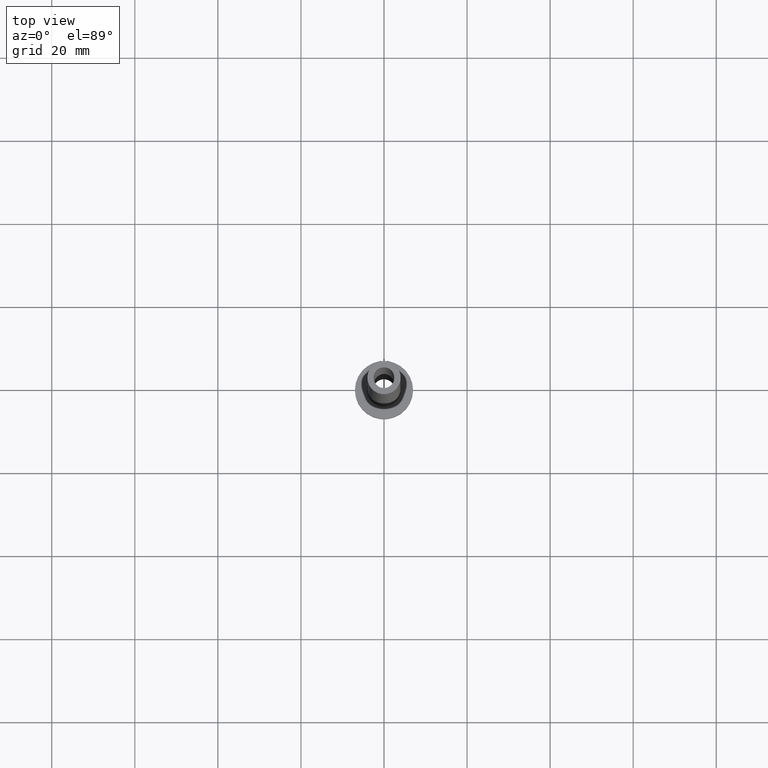
[diagram: clean part render]
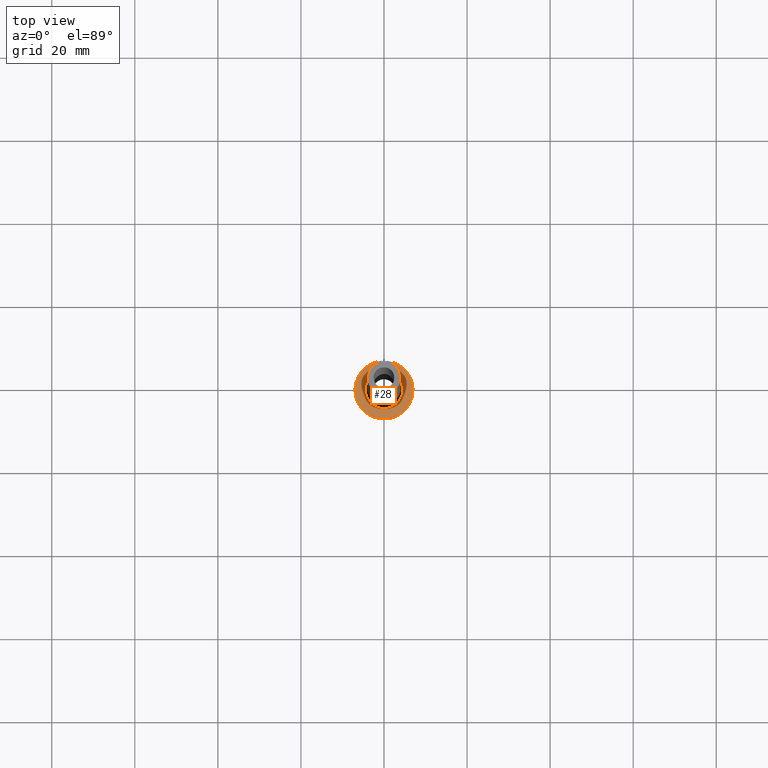
[diagram: same view with one face highlighted and labeled with its STEP entity id]
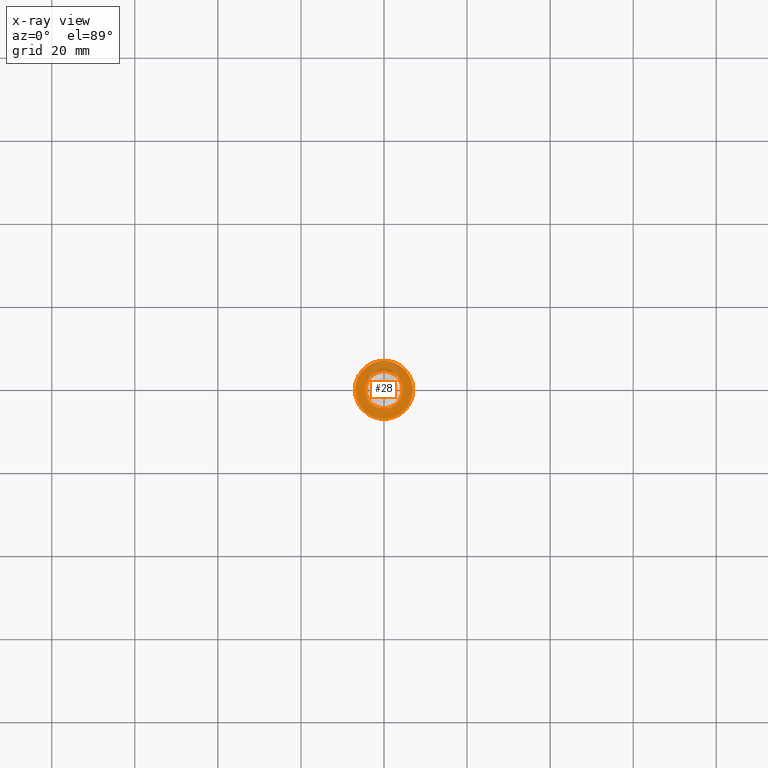
[diagram: x-ray of the same camera — body ghosted, the highlighted face saturated]
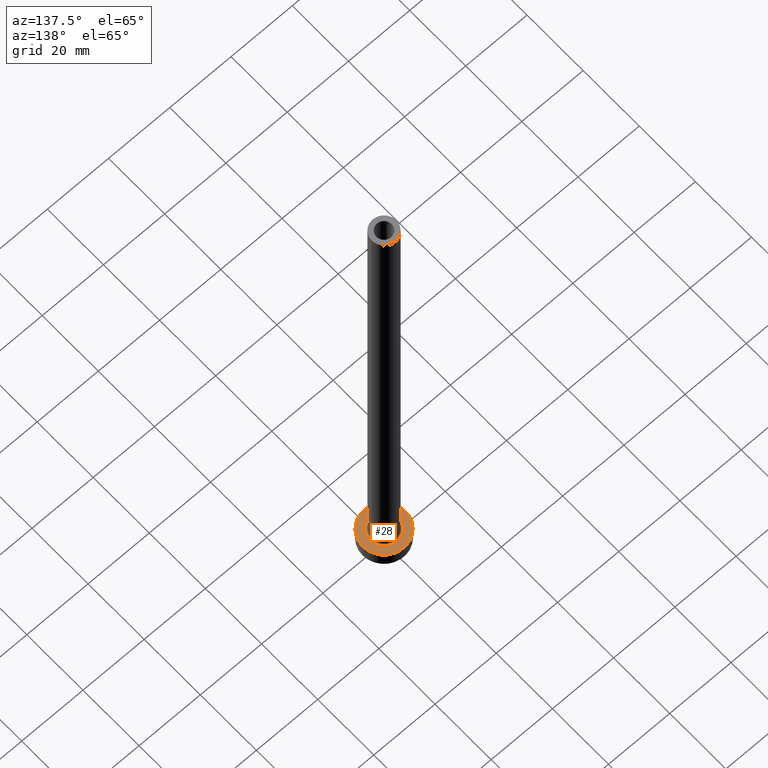
[diagram: same view with one face highlighted and labeled with its STEP entity id]
A machine part, top view. The second image highlights one B-rep face of the part: STEP entity #28.
The next image is the same camera in x-ray: the body ghosted, the highlighted face saturated — about 20% of this face is hidden behind the body in this view.
A second angle (auxiliary view) of the same face is appended — the face is thin or edge-on in the first view.
In plain terms, the highlighted planar face has unit normal (0, 0, 1).
Its self-contained STEP definition (entity closure, byte-faithful):
#9 = CIRCLE ( 'NONE', #252, 4.500000000000000888 ) ;
#28 = ADVANCED_FACE ( 'NONE', ( #218, #256 ), #220, .T. ) ;
#29 = CARTESIAN_POINT ( 'NONE',  ( 0.000000000000000000, 0.000000000000000000, 5.000000000000000000 ) ) ;
#47 = ORIENTED_EDGE ( 'NONE', *, *, #328, .T. ) ;
#68 = DIRECTION ( 'NONE',  ( 1.000000000000000000, 0.000000000000000000, 0.000000000000000000 ) ) ;
#81 = VERTEX_POINT ( 'NONE', #237 ) ;
#100 = CIRCLE ( 'NONE', #323, 7.000000000000000000 ) ;
#103 = CARTESIAN_POINT ( 'NONE',  ( 0.000000000000000000, 0.000000000000000000, 5.000000000000000000 ) ) ;
#104 = DIRECTION ( 'NONE',  ( 1.000000000000000000, 0.000000000000000000, 0.000000000000000000 ) ) ;
#117 = VERTEX_POINT ( 'NONE', #157 ) ;
#129 = CARTESIAN_POINT ( 'NONE',  ( 0.000000000000000000, 0.000000000000000000, 5.000000000000000000 ) ) ;
#137 = AXIS2_PLACEMENT_3D ( 'NONE', #129, #255, #224 ) ;
#139 = DIRECTION ( 'NONE',  ( -0.000000000000000000, -0.000000000000000000, -1.000000000000000000 ) ) ;
#157 = CARTESIAN_POINT ( 'NONE',  ( 7.000000000000000000, 8.572527594031473190E-16, 5.000000000000000000 ) ) ;
#178 = DIRECTION ( 'NONE',  ( 0.000000000000000000, 0.000000000000000000, 1.000000000000000000 ) ) ;
#181 = EDGE_CURVE ( 'NONE', #195, #247, #297, .T. ) ;
#195 = VERTEX_POINT ( 'NONE', #277 ) ;
#211 = DIRECTION ( 'NONE',  ( -0.000000000000000000, -0.000000000000000000, -1.000000000000000000 ) ) ;
#217 = DIRECTION ( 'NONE',  ( 1.000000000000000000, 0.000000000000000000, 0.000000000000000000 ) ) ;
#218 = FACE_BOUND ( 'NONE', #289, .T. ) ;
#220 = PLANE ( 'NONE',  #274 ) ;
#223 = ORIENTED_EDGE ( 'NONE', *, *, #285, .T. ) ;
#224 = DIRECTION ( 'NONE',  ( 1.000000000000000000, 0.000000000000000000, 0.000000000000000000 ) ) ;
#237 = CARTESIAN_POINT ( 'NONE',  ( -7.000000000000000000, 0.000000000000000000, 5.000000000000000000 ) ) ;
#245 = DIRECTION ( 'NONE',  ( 0.000000000000000000, 0.000000000000000000, 1.000000000000000000 ) ) ;
#247 = VERTEX_POINT ( 'NONE', #381 ) ;
#252 = AXIS2_PLACEMENT_3D ( 'NONE', #361, #211, #68 ) ;
#255 = DIRECTION ( 'NONE',  ( 0.000000000000000000, 0.000000000000000000, 1.000000000000000000 ) ) ;
#256 = FACE_OUTER_BOUND ( 'NONE', #404, .T. ) ;
#264 = ORIENTED_EDGE ( 'NONE', *, *, #181, .T. ) ;
#274 = AXIS2_PLACEMENT_3D ( 'NONE', #29, #178, #321 ) ;
#277 = CARTESIAN_POINT ( 'NONE',  ( -4.500000000000000888, 5.510910596163088569E-16, 5.000000000000002665 ) ) ;
#285 = EDGE_CURVE ( 'NONE', #81, #117, #100, .T. ) ;
#289 = EDGE_LOOP ( 'NONE', ( #405, #264 ) ) ;
#297 = CIRCLE ( 'NONE', #441, 4.500000000000000888 ) ;
#301 = EDGE_CURVE ( 'NONE', #247, #195, #9, .T. ) ;
#317 = CARTESIAN_POINT ( 'NONE',  ( 0.000000000000000000, 0.000000000000000000, 5.000000000000000000 ) ) ;
#321 = DIRECTION ( 'NONE',  ( 1.000000000000000000, 0.000000000000000000, -0.000000000000000000 ) ) ;
#323 = AXIS2_PLACEMENT_3D ( 'NONE', #103, #245, #217 ) ;
#328 = EDGE_CURVE ( 'NONE', #117, #81, #338, .T. ) ;
#338 = CIRCLE ( 'NONE', #137, 7.000000000000000000 ) ;
#361 = CARTESIAN_POINT ( 'NONE',  ( 0.000000000000000000, 0.000000000000000000, 5.000000000000000000 ) ) ;
#381 = CARTESIAN_POINT ( 'NONE',  ( 4.500000000000000888, 0.000000000000000000, 5.000000000000002665 ) ) ;
#404 = EDGE_LOOP ( 'NONE', ( #223, #47 ) ) ;
#405 = ORIENTED_EDGE ( 'NONE', *, *, #301, .T. ) ;
#441 = AXIS2_PLACEMENT_3D ( 'NONE', #317, #139, #104 ) ;